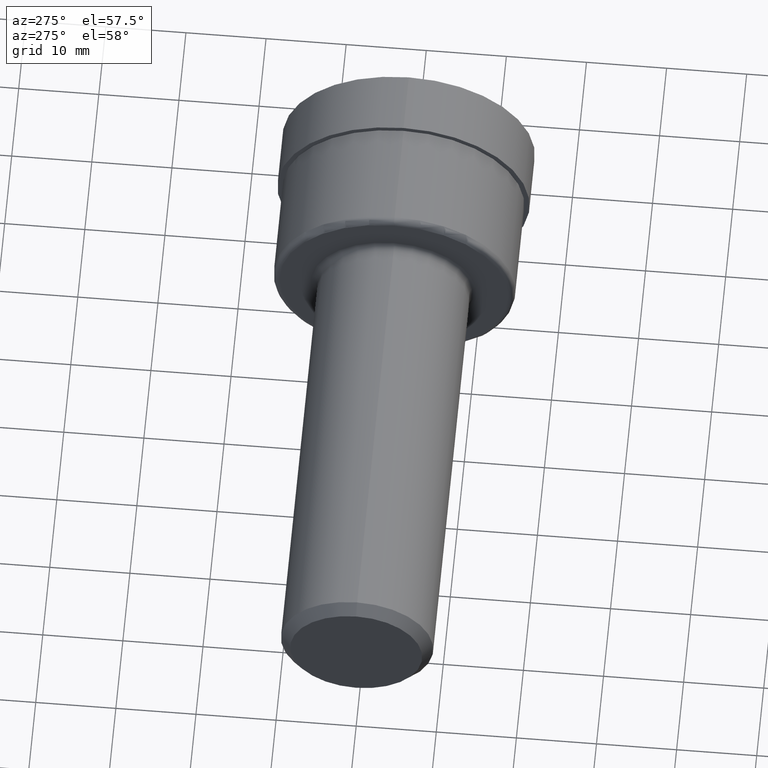
[diagram: clean part render]
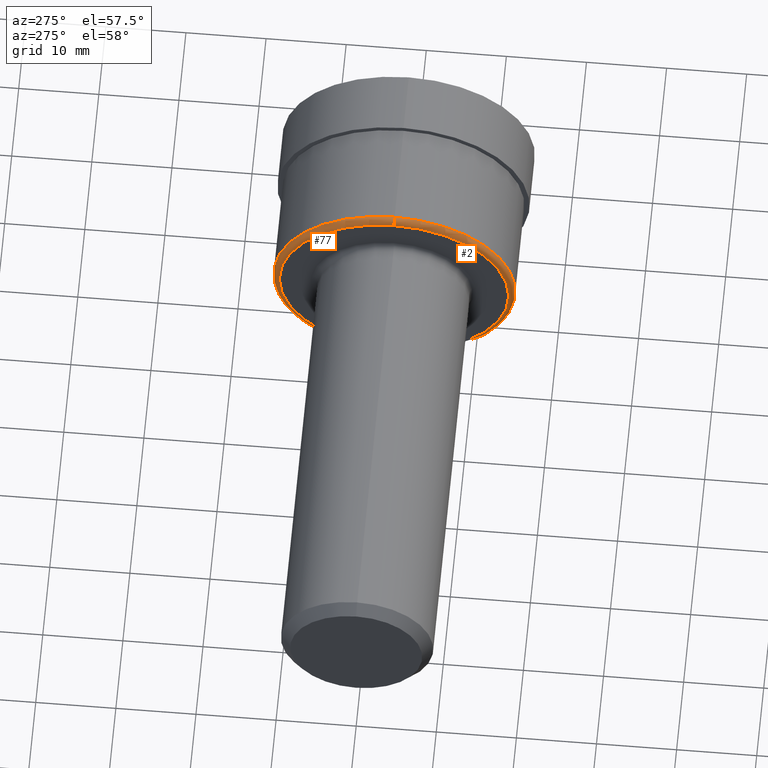
[diagram: same view with one multi-face feature highlighted, each face labeled with its STEP entity id]
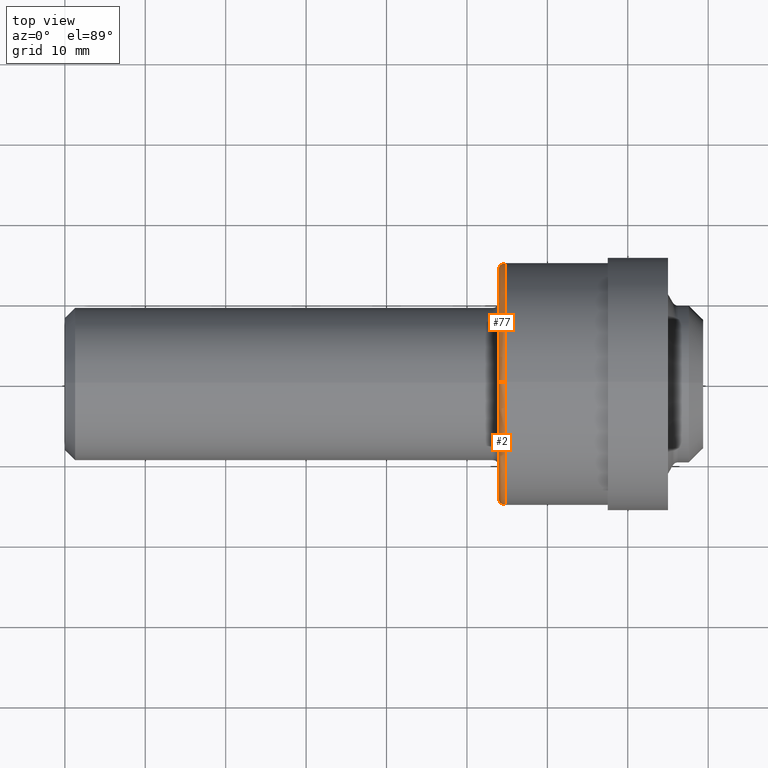
[diagram: same view with one multi-face feature highlighted, each face labeled with its STEP entity id]
A machine part, auxiliary view. The highlighted faces form ONE feature: a constant-radius fillet chain: 2 tangent blend faces with common blend radius 0.762 mm. The faces share edges in the B-rep.
A second angle (top view) of the same feature is appended — it is thin or edge-on in the first view.
Their STEP definitions:
[1] entity #2 (Torus):
#2 = ADVANCED_FACE ( 'NONE', ( #682 ), #261, .T. ) ;
#14 = CARTESIAN_POINT ( 'NONE',  ( 2.125000000000000000, 7.090704967063174160E-17, -0.5639999999999999458 ) ) ;
#26 = DIRECTION ( 'NONE',  ( 0.000000000000000000, 0.000000000000000000, 1.000000000000000000 ) ) ;
#34 = DIRECTION ( 'NONE',  ( 0.000000000000000000, 0.000000000000000000, -1.000000000000000000 ) ) ;
#42 = CARTESIAN_POINT ( 'NONE',  ( 2.154999999999999805, 0.000000000000000000, 0.000000000000000000 ) ) ;
#103 = CARTESIAN_POINT ( 'NONE',  ( 2.154999999999999805, 0.000000000000000000, 0.5939999999999999725 ) ) ;
#110 = AXIS2_PLACEMENT_3D ( 'NONE', #629, #478, #153 ) ;
#118 = EDGE_LOOP ( 'NONE', ( #298, #603, #570, #183 ) ) ;
#120 = CARTESIAN_POINT ( 'NONE',  ( 2.154999999999999805, 7.274401986935277967E-17, -0.5939999999999999725 ) ) ;
#122 = DIRECTION ( 'NONE',  ( -1.000000000000000000, -0.000000000000000000, -0.000000000000000000 ) ) ;
#130 = VERTEX_POINT ( 'NONE', #14 ) ;
#153 = DIRECTION ( 'NONE',  ( 0.000000000000000000, 0.000000000000000000, 1.000000000000000000 ) ) ;
#160 = EDGE_CURVE ( 'NONE', #388, #130, #541, .T. ) ;
#183 = ORIENTED_EDGE ( 'NONE', *, *, #209, .F. ) ;
#193 = CARTESIAN_POINT ( 'NONE',  ( 2.154999999999999805, 6.907007947191071586E-17, -0.5639999999999999458 ) ) ;
#207 = DIRECTION ( 'NONE',  ( 0.000000000000000000, -1.000000000000000000, 0.000000000000000000 ) ) ;
#209 = EDGE_CURVE ( 'NONE', #130, #651, #587, .T. ) ;
#225 = CARTESIAN_POINT ( 'NONE',  ( 2.154999999999999805, 0.000000000000000000, 0.000000000000000000 ) ) ;
#240 = DIRECTION ( 'NONE',  ( 0.000000000000000000, -1.224646799147352221E-16, 1.000000000000000000 ) ) ;
#261 = TOROIDAL_SURFACE ( 'NONE', #463, 0.5639999999999999458, 0.02999999999999998848 ) ;
#268 = DIRECTION ( 'NONE',  ( -1.000000000000000000, -0.000000000000000000, -0.000000000000000000 ) ) ;
#298 = ORIENTED_EDGE ( 'NONE', *, *, #160, .F. ) ;
#388 = VERTEX_POINT ( 'NONE', #120 ) ;
#390 = CARTESIAN_POINT ( 'NONE',  ( 2.125000000000000000, 0.000000000000000000, 0.5639999999999999458 ) ) ;
#395 = AXIS2_PLACEMENT_3D ( 'NONE', #225, #122, #26 ) ;
#400 = VERTEX_POINT ( 'NONE', #103 ) ;
#463 = AXIS2_PLACEMENT_3D ( 'NONE', #42, #268, #477 ) ;
#476 = CARTESIAN_POINT ( 'NONE',  ( 2.154999999999999805, 0.000000000000000000, 0.5639999999999999458 ) ) ;
#477 = DIRECTION ( 'NONE',  ( 0.000000000000000000, 0.000000000000000000, 1.000000000000000000 ) ) ;
#478 = DIRECTION ( 'NONE',  ( -1.000000000000000000, -0.000000000000000000, -0.000000000000000000 ) ) ;
#479 = EDGE_CURVE ( 'NONE', #400, #651, #686, .T. ) ;
#503 = DIRECTION ( 'NONE',  ( -0.000000000000000000, 1.000000000000000000, 1.224646799147353207E-16 ) ) ;
#505 = AXIS2_PLACEMENT_3D ( 'NONE', #476, #207, #34 ) ;
#541 = CIRCLE ( 'NONE', #661, 0.03000000000000002318 ) ;
#570 = ORIENTED_EDGE ( 'NONE', *, *, #479, .T. ) ;
#573 = CIRCLE ( 'NONE', #395, 0.5939999999999999725 ) ;
#587 = CIRCLE ( 'NONE', #110, 0.5639999999999999458 ) ;
#603 = ORIENTED_EDGE ( 'NONE', *, *, #671, .T. ) ;
#629 = CARTESIAN_POINT ( 'NONE',  ( 2.125000000000000000, 0.000000000000000000, 0.000000000000000000 ) ) ;
#651 = VERTEX_POINT ( 'NONE', #390 ) ;
#661 = AXIS2_PLACEMENT_3D ( 'NONE', #193, #503, #240 ) ;
#671 = EDGE_CURVE ( 'NONE', #388, #400, #573, .T. ) ;
#682 = FACE_OUTER_BOUND ( 'NONE', #118, .T. ) ;
#686 = CIRCLE ( 'NONE', #505, 0.03000000000000002318 ) ;
[2] entity #77 (Torus):
#3 = FACE_OUTER_BOUND ( 'NONE', #114, .T. ) ;
#5 = DIRECTION ( 'NONE',  ( 0.000000000000000000, 0.000000000000000000, 1.000000000000000000 ) ) ;
#14 = CARTESIAN_POINT ( 'NONE',  ( 2.125000000000000000, 7.090704967063174160E-17, -0.5639999999999999458 ) ) ;
#34 = DIRECTION ( 'NONE',  ( 0.000000000000000000, 0.000000000000000000, -1.000000000000000000 ) ) ;
#55 = DIRECTION ( 'NONE',  ( 0.000000000000000000, 0.000000000000000000, 1.000000000000000000 ) ) ;
#62 = CARTESIAN_POINT ( 'NONE',  ( 2.125000000000000000, 0.000000000000000000, 0.000000000000000000 ) ) ;
#77 = ADVANCED_FACE ( 'NONE', ( #3 ), #121, .T. ) ;
#103 = CARTESIAN_POINT ( 'NONE',  ( 2.154999999999999805, 0.000000000000000000, 0.5939999999999999725 ) ) ;
#104 = EDGE_CURVE ( 'NONE', #400, #388, #443, .T. ) ;
#114 = EDGE_LOOP ( 'NONE', ( #364, #614, #589, #324 ) ) ;
#120 = CARTESIAN_POINT ( 'NONE',  ( 2.154999999999999805, 7.274401986935277967E-17, -0.5939999999999999725 ) ) ;
#121 = TOROIDAL_SURFACE ( 'NONE', #413, 0.5639999999999999458, 0.02999999999999998848 ) ;
#130 = VERTEX_POINT ( 'NONE', #14 ) ;
#160 = EDGE_CURVE ( 'NONE', #388, #130, #541, .T. ) ;
#186 = DIRECTION ( 'NONE',  ( 0.000000000000000000, 0.000000000000000000, 1.000000000000000000 ) ) ;
#193 = CARTESIAN_POINT ( 'NONE',  ( 2.154999999999999805, 6.907007947191071586E-17, -0.5639999999999999458 ) ) ;
#207 = DIRECTION ( 'NONE',  ( 0.000000000000000000, -1.000000000000000000, 0.000000000000000000 ) ) ;
#217 = CIRCLE ( 'NONE', #456, 0.5639999999999999458 ) ;
#240 = DIRECTION ( 'NONE',  ( 0.000000000000000000, -1.224646799147352221E-16, 1.000000000000000000 ) ) ;
#324 = ORIENTED_EDGE ( 'NONE', *, *, #479, .F. ) ;
#334 = EDGE_CURVE ( 'NONE', #651, #130, #217, .T. ) ;
#364 = ORIENTED_EDGE ( 'NONE', *, *, #104, .T. ) ;
#386 = DIRECTION ( 'NONE',  ( -1.000000000000000000, -0.000000000000000000, -0.000000000000000000 ) ) ;
#388 = VERTEX_POINT ( 'NONE', #120 ) ;
#390 = CARTESIAN_POINT ( 'NONE',  ( 2.125000000000000000, 0.000000000000000000, 0.5639999999999999458 ) ) ;
#400 = VERTEX_POINT ( 'NONE', #103 ) ;
#413 = AXIS2_PLACEMENT_3D ( 'NONE', #641, #386, #186 ) ;
#443 = CIRCLE ( 'NONE', #509, 0.5939999999999999725 ) ;
#451 = DIRECTION ( 'NONE',  ( -1.000000000000000000, -0.000000000000000000, -0.000000000000000000 ) ) ;
#456 = AXIS2_PLACEMENT_3D ( 'NONE', #62, #451, #5 ) ;
#476 = CARTESIAN_POINT ( 'NONE',  ( 2.154999999999999805, 0.000000000000000000, 0.5639999999999999458 ) ) ;
#479 = EDGE_CURVE ( 'NONE', #400, #651, #686, .T. ) ;
#503 = DIRECTION ( 'NONE',  ( -0.000000000000000000, 1.000000000000000000, 1.224646799147353207E-16 ) ) ;
#505 = AXIS2_PLACEMENT_3D ( 'NONE', #476, #207, #34 ) ;
#509 = AXIS2_PLACEMENT_3D ( 'NONE', #650, #597, #55 ) ;
#541 = CIRCLE ( 'NONE', #661, 0.03000000000000002318 ) ;
#589 = ORIENTED_EDGE ( 'NONE', *, *, #334, .F. ) ;
#597 = DIRECTION ( 'NONE',  ( -1.000000000000000000, -0.000000000000000000, -0.000000000000000000 ) ) ;
#614 = ORIENTED_EDGE ( 'NONE', *, *, #160, .T. ) ;
#641 = CARTESIAN_POINT ( 'NONE',  ( 2.154999999999999805, 0.000000000000000000, 0.000000000000000000 ) ) ;
#650 = CARTESIAN_POINT ( 'NONE',  ( 2.154999999999999805, 0.000000000000000000, 0.000000000000000000 ) ) ;
#651 = VERTEX_POINT ( 'NONE', #390 ) ;
#661 = AXIS2_PLACEMENT_3D ( 'NONE', #193, #503, #240 ) ;
#686 = CIRCLE ( 'NONE', #505, 0.03000000000000002318 ) ;